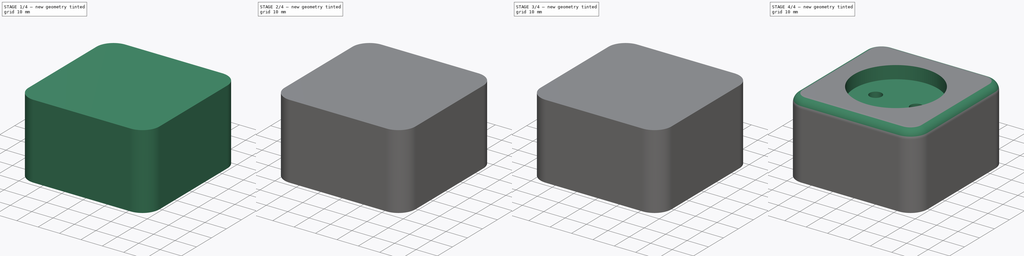
[diagram: build sequence overview — one tinted view per stage of 4, left to right]
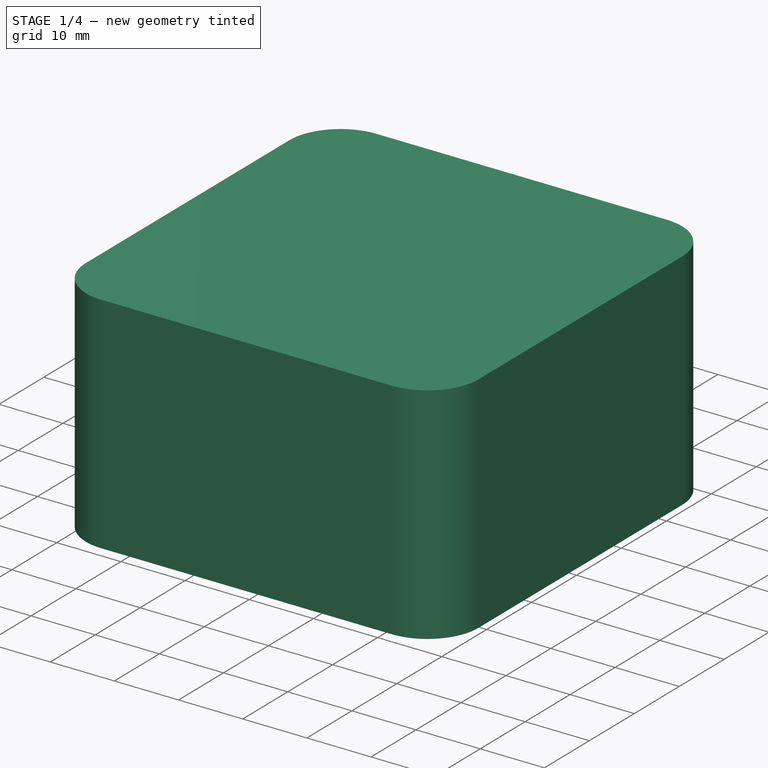
[diagram: stage 1 of 4 — iso view after this stage's code; geometry added in this stage tinted green]
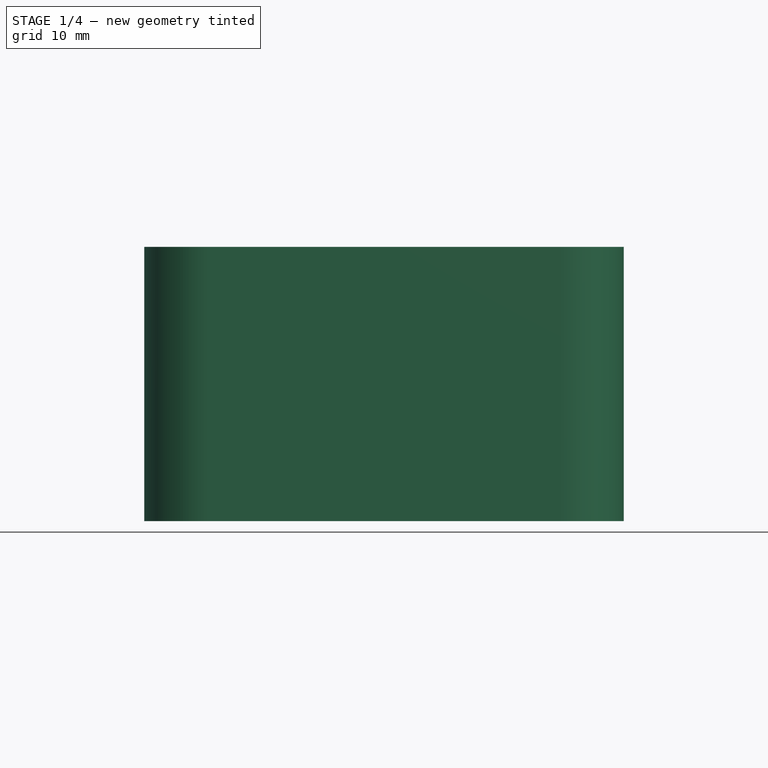
[diagram: stage 1 of 4 — front view after this stage's code; geometry added in this stage tinted green]
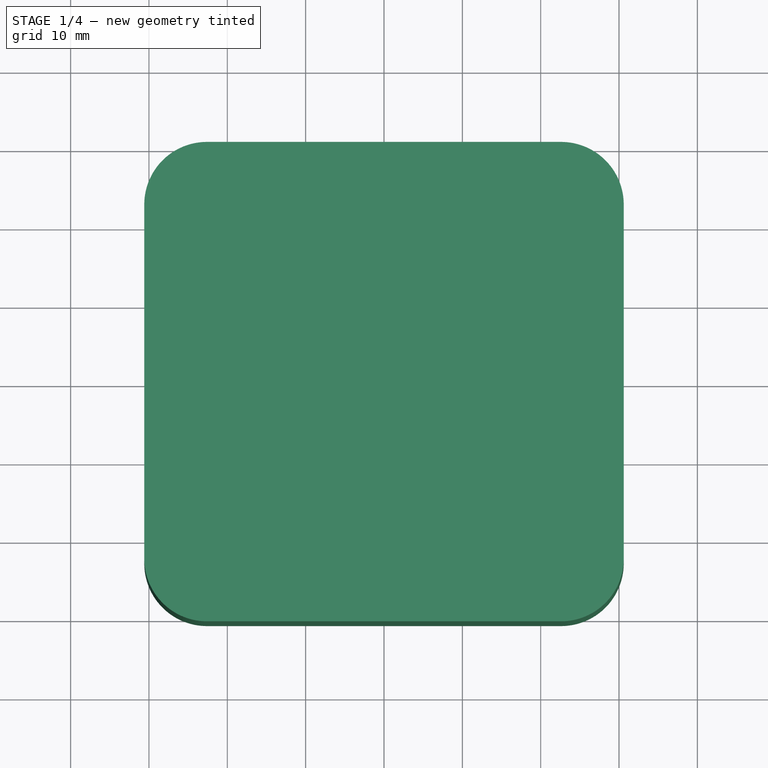
[diagram: stage 1 of 4 — top view after this stage's code; geometry added in this stage tinted green]
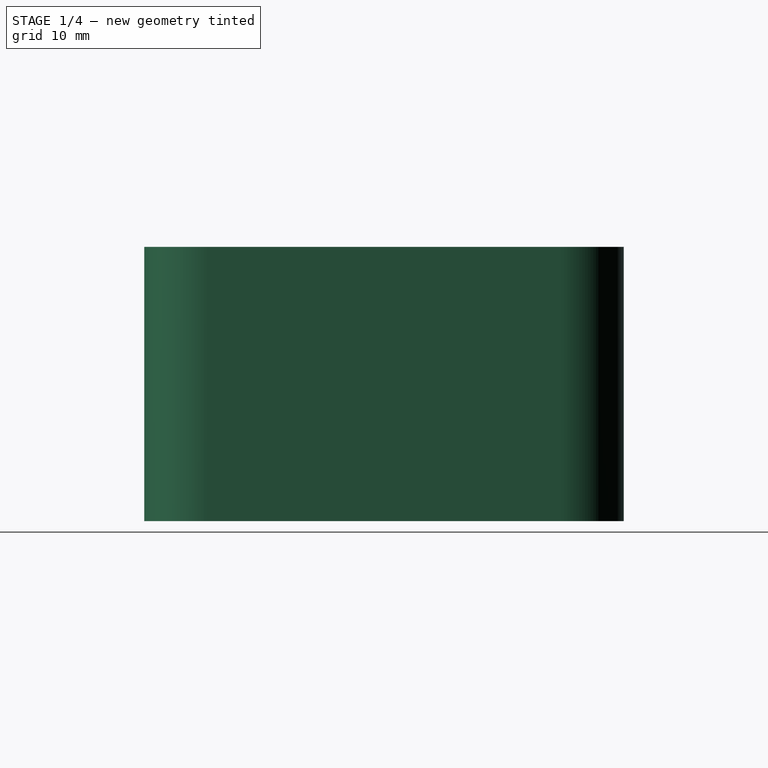
[diagram: stage 1 of 4 — right view after this stage's code; geometry added in this stage tinted green]
FCSTD DOCUMENT  (FreeCAD 0.19R24276 (Git))
Label: Wallsocket
License: All rights reserved
LicenseURL: http://en.wikipedia.org/wiki/All_rights_reserved
objects: Sketcher::SketchObject×10, PartDesign::Pad×5, PartDesign::Pocket×4, PartDesign::Mirrored×3, PartDesign::MultiTransform×1, PartDesign::Groove×1, PartDesign::Fillet×1, PartDesign::Body×1
note: 37 computed .brp shape members not serialized (recipe doc carries the construction recipe); baked Part::Feature solids carry a one-line shape summary decoded from their .brp

FEATURE [Sketcher::SketchObject] Sketch
  FullyConstrained = true
  MapMode = 5
  Support = -> [XY_Plane]
  sketch-geometry (12):
    g0: LineSegment StartX=-22.6 StartY=30.6 StartZ=0 EndX=22.6 EndY=30.6 EndZ=0
    g1: LineSegment StartX=30.6 StartY=22.6 StartZ=0 EndX=30.6 EndY=-22.6 EndZ=0
    g2: LineSegment StartX=22.6 StartY=-30.6 StartZ=0 EndX=-22.6 EndY=-30.6 EndZ=0
    g3: LineSegment StartX=-30.6 StartY=-22.6 StartZ=0 EndX=-30.6 EndY=22.6 EndZ=0
    g4: ArcOfCircle CenterX=-22.6 CenterY=22.6 CenterZ=0 NormalX=0 NormalY=0 NormalZ=1 AngleXU=0 Radius=8 StartAngle=1.5708 EndAngle=3.14159
    g5: ArcOfCircle CenterX=22.6 CenterY=22.6 CenterZ=0 NormalX=0 NormalY=0 NormalZ=1 AngleXU=0 Radius=8 StartAngle=2.39e-14 EndAngle=1.5708
    g6: ArcOfCircle CenterX=22.6 CenterY=-22.6 CenterZ=0 NormalX=0 NormalY=0 NormalZ=1 AngleXU=0 Radius=8 StartAngle=4.71239 EndAngle=6.28319
    g7: ArcOfCircle CenterX=-22.6 CenterY=-22.6 CenterZ=0 NormalX=0 NormalY=0 NormalZ=1 AngleXU=0 Radius=8 StartAngle=3.14159 EndAngle=4.71239
    g8: LineSegment StartX=-22.6 StartY=22.6 StartZ=0 EndX=22.6 EndY=22.6 EndZ=0
    g9: LineSegment StartX=22.6 StartY=22.6 StartZ=0 EndX=22.6 EndY=-22.6 EndZ=0
    g10: LineSegment StartX=22.6 StartY=-22.6 StartZ=0 EndX=-22.6 EndY=-22.6 EndZ=0
    g11: LineSegment StartX=-22.6 StartY=-22.6 StartZ=0 EndX=-22.6 EndY=22.6 EndZ=0
  constraints (26):
    c: Horizontal(g0)
    c: Horizontal(g2)
    c: Vertical(g1)
    c: Vertical(g3)
    c: Tangent(g3,g4) = 1.5708
    c: Tangent(g0,g4) = 1.5708
    c: Tangent(g0,g5) = 1.5708
    c: Tangent(g1,g5) = 1.5708
    c: Tangent(g1,g6) = 1.5708
    c: Tangent(g2,g6) = 1.5708
    c: Tangent(g2,g7) = 1.5708
    c: Tangent(g3,g7) = 1.5708
    c: Coincident(g8,g9)
    c: Coincident(g9,g10)
    c: Coincident(g10,g11)
    c: Coincident(g11,g8)
    c: Horizontal(g10)
    c: Coincident(g8,g4)
    c: Coincident(g9,g6)
    c: Coincident(g5,g8)
    c: Coincident(g7,g10)
    c: Symmetric(g5,g6,g-1)
    c: Symmetric(g5,g4,g-2)
    c: Equal(g9,g8)
    c: DistanceX(g3,g1) = 61.2
    c: Radius(g5) = 8
FEATURE [PartDesign::Pad] Pad
  Direction = (1,1,1)
  Length = 35
  Length2 = 100
  Profile = -> Sketch
  Type = 0
FEATURE [Sketcher::SketchObject] Sketch001
  ExternalGeometry = -> [Sketch]
  FullyConstrained = true
  MapMode = 5
  Support = -> [XY_Plane]
  sketch-geometry (12):
    g0: LineSegment StartX=22.6 StartY=22.6 StartZ=0 EndX=-22.6 EndY=22.6 EndZ=0
    g1: LineSegment StartX=-22.6 StartY=22.6 StartZ=0 EndX=-22.6 EndY=-22.6 EndZ=0
    g2: LineSegment StartX=-22.6 StartY=-22.6 StartZ=0 EndX=22.6 EndY=-22.6 EndZ=0
    g3: LineSegment StartX=22.6 StartY=-22.6 StartZ=0 EndX=22.6 EndY=22.6 EndZ=0
    g4: LineSegment StartX=-22.6 StartY=28.3 StartZ=0 EndX=22.6 EndY=28.3 EndZ=0
    g5: LineSegment StartX=28.3 StartY=22.6 StartZ=0 EndX=28.3 EndY=-22.6 EndZ=0
    g6: LineSegment StartX=22.6 StartY=-28.3 StartZ=0 EndX=-22.6 EndY=-28.3 EndZ=0
    g7: LineSegment StartX=-28.3 StartY=-22.6 StartZ=0 EndX=-28.3 EndY=22.6 EndZ=0
    g8: ArcOfCircle CenterX=22.6 CenterY=22.6 CenterZ=0 NormalX=0 NormalY=0 NormalZ=1 AngleXU=0 Radius=5.7 StartAngle=0 EndAngle=1.5708
    g9: ArcOfCircle CenterX=-22.6 CenterY=22.6 CenterZ=0 NormalX=0 NormalY=0 NormalZ=1 AngleXU=0 Radius=5.7 StartAngle=1.5708 EndAngle=3.14159
    g10: ArcOfCircle CenterX=-22.6 CenterY=-22.6 CenterZ=0 NormalX=0 NormalY=0 NormalZ=1 AngleXU=0 Radius=5.7 StartAngle=3.14159 EndAngle=4.71239
    g11: ArcOfCircle CenterX=22.6 CenterY=-22.6 CenterZ=0 NormalX=0 NormalY=0 NormalZ=1 AngleXU=0 Radius=5.7 StartAngle=4.71239 EndAngle=6.28319
  constraints (25):
    c: Coincident(g0,g1)
    c: Coincident(g1,g2)
    c: Coincident(g2,g3)
    c: Coincident(g3,g0)
    c: Horizontal(g2)
    c: Vertical(g1)
    c: Coincident(g0,g-3)
    c: Symmetric(g0,g2,g-1)
    c: Symmetric(g0,g0,g-2)
    c: Horizontal(g4)
    c: Horizontal(g6)
    c: Vertical(g5)
    c: Tangent(g5,g8) = 1.5708
    c: Tangent(g4,g8) = 1.5708
    c: Tangent(g4,g9) = 1.5708
    c: Tangent(g7,g9) = 1.5708
    c: Tangent(g7,g10) = 1.5708
    c: Tangent(g6,g10) = 1.5708
    c: Tangent(g6,g11) = 1.5708
    c: Tangent(g5,g11) = 1.5708
    c: Coincident(g0,g8)
    c: Coincident(g0,g9)
    c: Coincident(g1,g10)
    c: Coincident(g2,g11)
    c: DistanceX(g5,g-3) = 2.3
FEATURE [PartDesign::Pocket] Pocket
  BaseFeature = -> Pad
  Length = 25
  Length2 = 100
  Profile = -> Sketch001
  Reversed = true
  Type = 0
FEATURE [Sketcher::SketchObject] Sketch002
  FullyConstrained = true
  MapMode = 5
  Support = -> [XY_Plane]
  sketch-geometry (4):
    g0: LineSegment StartX=19.5 StartY=28.6 StartZ=0 EndX=13.1 EndY=28.6 EndZ=0
    g1: LineSegment StartX=13.1 StartY=28.6 StartZ=0 EndX=13.1 EndY=26.1 EndZ=0
    g2: LineSegment StartX=13.1 StartY=26.1 StartZ=0 EndX=19.5 EndY=26.1 EndZ=0
    g3: LineSegment StartX=19.5 StartY=26.1 StartZ=0 EndX=19.5 EndY=28.6 EndZ=0
  constraints (12):
    c: Coincident(g0,g1)
    c: Coincident(g1,g2)
    c: Coincident(g2,g3)
    c: Coincident(g3,g0)
    c: Horizontal(g0)
    c: Horizontal(g2)
    c: Vertical(g1)
    c: Vertical(g3)
    c: DistanceX(g2) = 19.5
    c: DistanceX(g2,g2) = 6.4
    c: DistanceY(g2) = 26.1
    c: DistanceY(g3,g3) = 2.5
FEATURE [PartDesign::Pad] Pad001
  BaseFeature = -> Pocket
  Direction = (1,1,1)
  Length = 9
  Length2 = 100
  Profile = -> Sketch002
  Type = 0
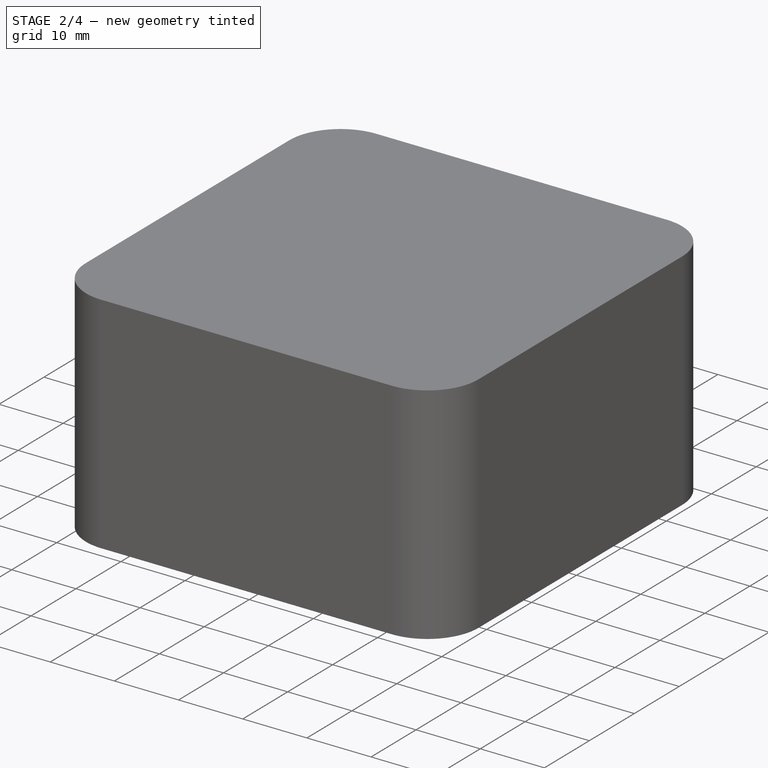
[diagram: stage 2 of 4 — iso view after this stage's code; geometry added in this stage tinted green]
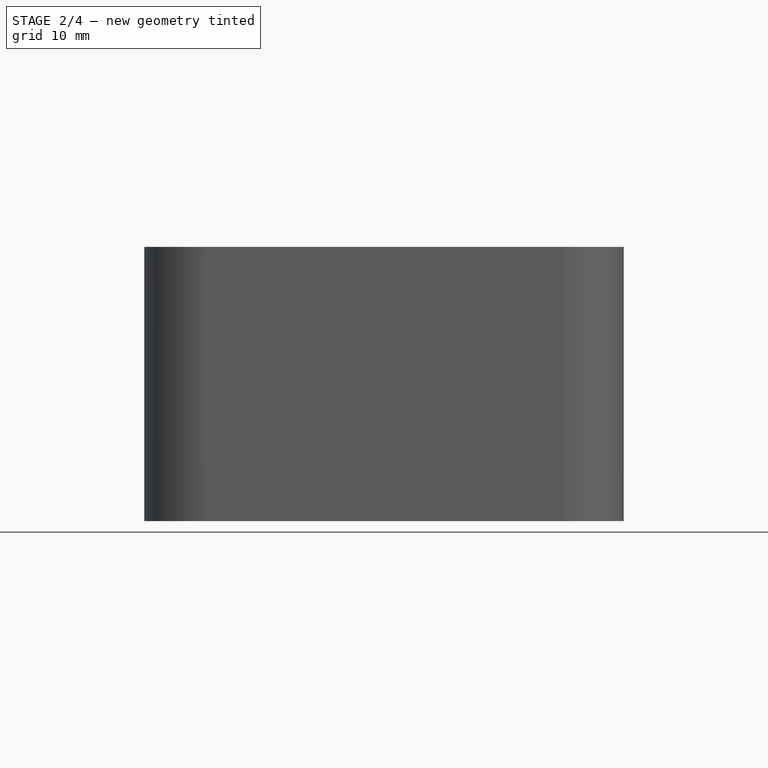
[diagram: stage 2 of 4 — front view after this stage's code; geometry added in this stage tinted green]
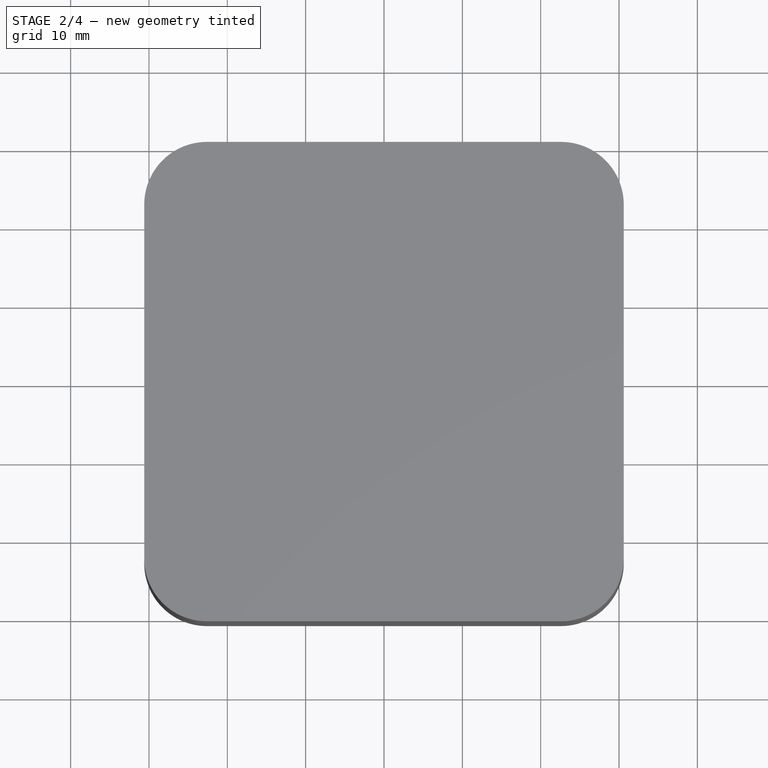
[diagram: stage 2 of 4 — top view after this stage's code; geometry added in this stage tinted green]
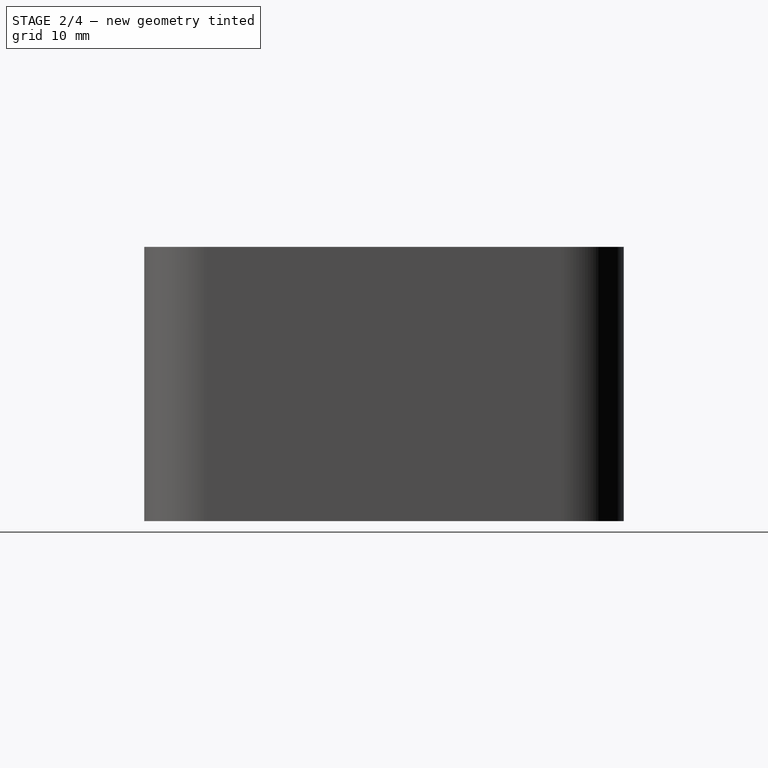
[diagram: stage 2 of 4 — right view after this stage's code; geometry added in this stage tinted green]
FEATURE [Sketcher::SketchObject] Sketch003
  FullyConstrained = true
  MapMode = 5
  Support = -> [XY_Plane]
  sketch-geometry (2):
    g0: Circle CenterX=28.1 CenterY=15.6 CenterZ=0 NormalX=0 NormalY=0 NormalZ=1 AngleXU=0 Radius=1.55
    g1: LineSegment StartX=28.1 StartY=15.6 StartZ=0 EndX=26.55 EndY=15.6 EndZ=0
  constraints (6):
    c: Radius(g0) = 1.55
    c: Coincident(g1,g0)
    c: PointOnObject(g1,g0)
    c: Horizontal(g1)
    c: DistanceX(g1) = 26.55
    c: DistanceY(g0) = 15.6
FEATURE [PartDesign::Pad] Pad002
  BaseFeature = -> Pad001
  Direction = (1,1,1)
  Length = 9
  Length2 = 100
  Profile = -> Sketch003
  Type = 0
FEATURE [Sketcher::SketchObject] Sketch004
  FullyConstrained = true
  MapMode = 5
  Support = -> [XY_Plane]
  sketch-geometry (6):
    g0: LineSegment StartX=21.8 StartY=3.3 StartZ=0 EndX=12.7 EndY=3.3 EndZ=0
    g1: LineSegment StartX=12.7 StartY=3.3 StartZ=0 EndX=12.7 EndY=5.5 EndZ=0
    g2: LineSegment StartX=14.7 StartY=7.5 StartZ=0 EndX=19.8 EndY=7.5 EndZ=0
    g3: LineSegment StartX=21.8 StartY=5.5 StartZ=0 EndX=21.8 EndY=3.3 EndZ=0
    g4: ArcOfCircle CenterX=19.8 CenterY=5.5 CenterZ=0 NormalX=0 NormalY=0 NormalZ=1 AngleXU=0 Radius=2 StartAngle=6.77e-14 EndAngle=1.5708
    g5: ArcOfCircle CenterX=14.7 CenterY=5.5 CenterZ=0 NormalX=0 NormalY=0 NormalZ=1 AngleXU=0 Radius=2 StartAngle=1.5708 EndAngle=3.14159
  constraints (16):
    c: Coincident(g0,g1)
    c: Coincident(g3,g0)
    c: Horizontal(g0)
    c: Horizontal(g2)
    c: Vertical(g1)
    c: Vertical(g3)
    c: Tangent(g3,g4) = 1.5708
    c: Tangent(g2,g4) = 1.5708
    c: Tangent(g2,g5) = 1.5708
    c: Tangent(g1,g5) = 1.5708
    c: DistanceX(g0,g0) = 9.1
    c: DistanceY(g0,g2) = 4.2
    c: DistanceY(g0) = 3.3
    c: DistanceX(g3) = 21.8
    c: Equal(g5,g4)
    c: Radius(g4) = 2
FEATURE [PartDesign::Pad] Pad003
  BaseFeature = -> Pad002
  Direction = (1,1,1)
  Length = 33
  Length2 = 100
  Profile = -> Sketch004
  Type = 0
FEATURE [PartDesign::Mirrored] Mirrored
  MirrorPlane = -> YZ_Plane
FEATURE [PartDesign::Mirrored] Mirrored001
  MirrorPlane = -> XZ_Plane
FEATURE [PartDesign::MultiTransform] MultiTransform
  BaseFeature = -> Pad003
  Originals = -> [Pad001,Pad003,Pad002]
  Transformations = -> [Mirrored,Mirrored001]
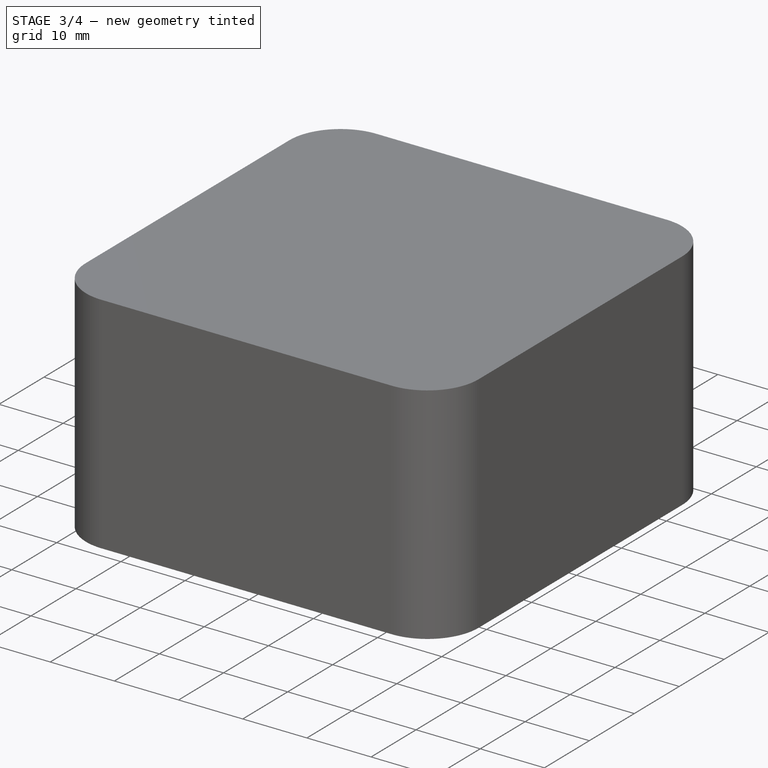
[diagram: stage 3 of 4 — iso view after this stage's code; geometry added in this stage tinted green]
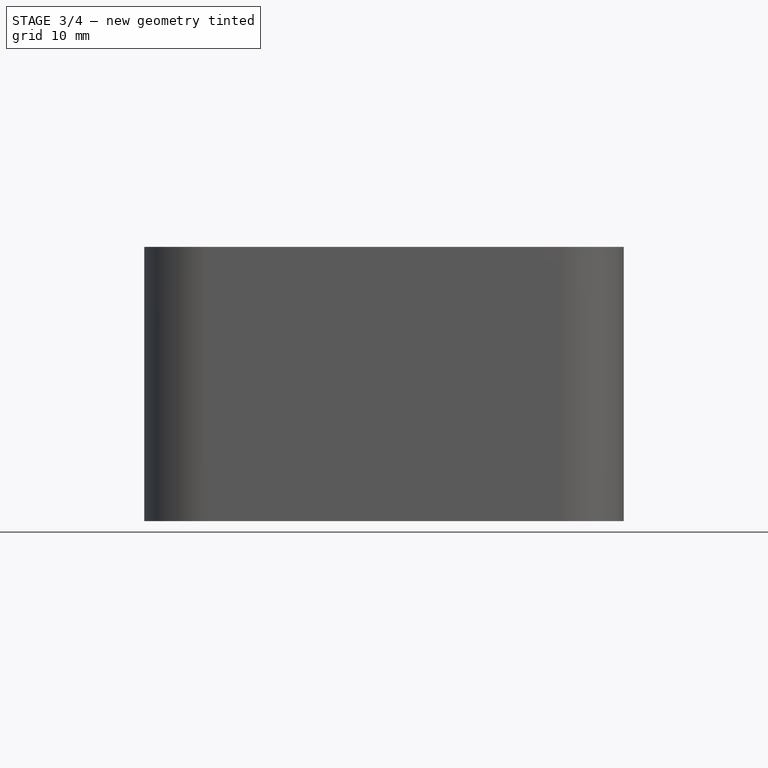
[diagram: stage 3 of 4 — front view after this stage's code; geometry added in this stage tinted green]
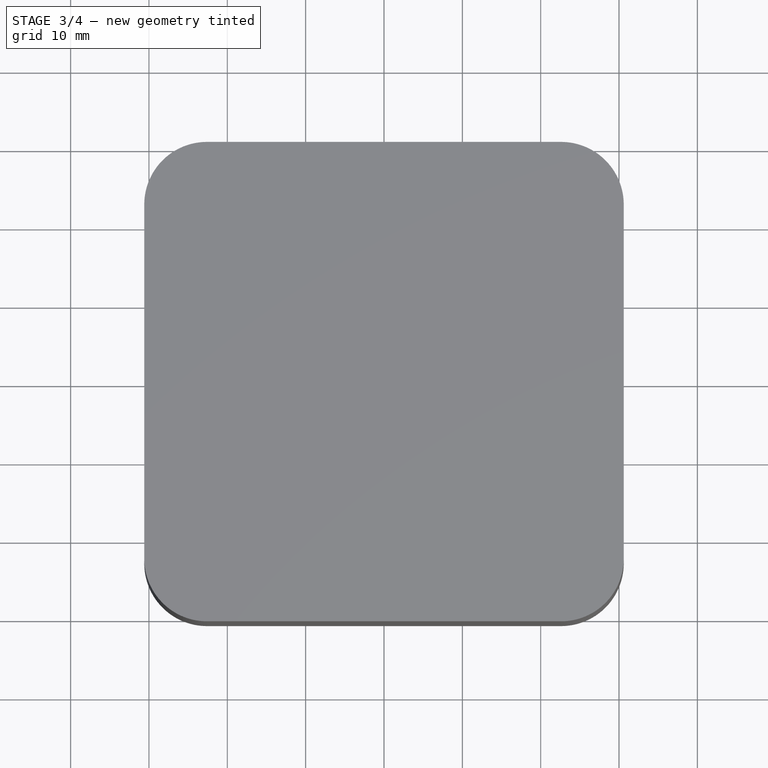
[diagram: stage 3 of 4 — top view after this stage's code; geometry added in this stage tinted green]
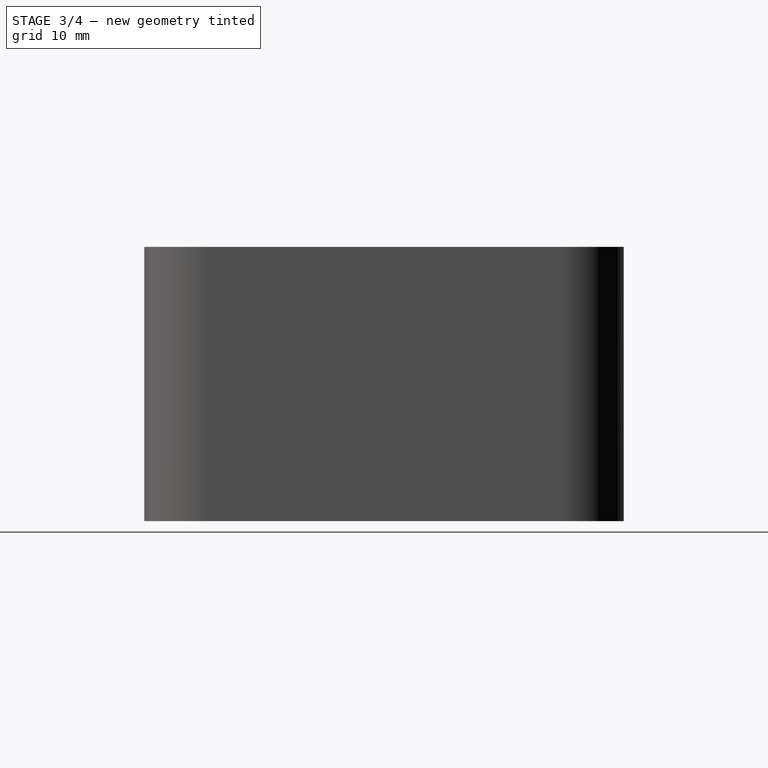
[diagram: stage 3 of 4 — right view after this stage's code; geometry added in this stage tinted green]
FEATURE [Sketcher::SketchObject] Sketch005
  FullyConstrained = true
  MapMode = 5
  Placement = pos=(0,0,0) rot=(1,0,0;1.5708rad)
  Support = -> [XZ_Plane]
  sketch-geometry (4):
    g0: LineSegment StartX=-12.75 StartY=1 StartZ=0 EndX=12.75 EndY=1 EndZ=0
    g1: LineSegment StartX=12.75 StartY=1 StartZ=0 EndX=17.5 EndY=0 EndZ=0
    g2: LineSegment StartX=17.5 StartY=0 StartZ=0 EndX=-17.5 EndY=0 EndZ=0
    g3: LineSegment StartX=-17.5 StartY=0 StartZ=0 EndX=-12.75 EndY=1 EndZ=0
  constraints (10):
    c: Coincident(g0,g1)
    c: Coincident(g1,g2)
    c: Coincident(g2,g3)
    c: Coincident(g3,g0)
    c: PointOnObject(g1,g-1)
    c: Symmetric(g0,g0,g-2)
    c: Symmetric(g1,g2,g-2)
    c: DistanceX(g2,g2) = 35
    c: DistanceX(g0,g0) = 25.5
    c: DistanceY(g1,g1) = 1
FEATURE [PartDesign::Pocket] Pocket001
  BaseFeature = -> MultiTransform
  Length = 20
  Length2 = 100
  Midplane = true
  Profile = -> Sketch005
  Type = 0
FEATURE [Sketcher::SketchObject] Sketch006
  AttachmentOffset = pos=(0,0,2) rot=(0,0,1;0rad)
  FullyConstrained = true
  MapMode = 5
  Placement = pos=(0,0,2) rot=(0,0,1;0rad)
  Support = -> [XY_Plane]
  sketch-geometry (9):
    g0: LineSegment StartX=23.95 StartY=5 StartZ=0 EndX=12.95 EndY=5 EndZ=0
    g1: LineSegment StartX=12.95 StartY=5 StartZ=0 EndX=12.95 EndY=-5 EndZ=0
    g2: LineSegment StartX=12.95 StartY=-5 StartZ=0 EndX=23.95 EndY=-5 EndZ=0
    g3: LineSegment StartX=23.95 StartY=-5 StartZ=0 EndX=23.95 EndY=-2.25 EndZ=0
    g4: ArcOfCircle CenterX=19 CenterY=0 CenterZ=0 NormalX=0 NormalY=0 NormalZ=1 AngleXU=0 Radius=2.25 StartAngle=1.5708 EndAngle=4.71239
    g5: LineSegment StartX=19 StartY=-2.25 StartZ=0 EndX=23.95 EndY=-2.25 EndZ=0
    g6: LineSegment StartX=19 StartY=2.25 StartZ=0 EndX=23.95 EndY=2.25 EndZ=0
    g7: LineSegment StartX=23.95 StartY=2.25 StartZ=0 EndX=23.95 EndY=5 EndZ=0
    g8: GeomPoint X=16.75 Y=0 Z=0
  constraints (23):
    c: Coincident(g0,g1)
    c: Coincident(g1,g2)
    c: Coincident(g2,g3)
    c: Coincident(g7,g0)
    c: Horizontal(g0)
    c: Horizontal(g2)
    c: Vertical(g1)
    c: Symmetric(g2,g0,g-1)
    c: Tangent(g4,g6) = 1.5708
    c: Tangent(g4,g5) = -1.5708
    c: Horizontal(g5)
    c: PointOnObject(g4,g-1)
    c: Coincident(g7,g6)
    c: Tangent(g3,g7)
    c: Coincident(g5,g3)
    c: Radius(g4) = 2.25
    c: Horizontal(g6)
    c: PointOnObject(g8,g4)
    c: PointOnObject(g8,g-1)
    c: DistanceX(g4) = 19
    c: DistanceX(g0) = 23.95
    c: DistanceY(g2,g0) = 10
    c: DistanceX(g0,g0) = 11
FEATURE [PartDesign::Pad] Pad004
  BaseFeature = -> Pocket001
  Direction = (1,1,1)
  Length = 7
  Length2 = 100
  Profile = -> Sketch006
  Type = 0
FEATURE [Sketcher::SketchObject] Sketch007
  AttachmentOffset = pos=(0,0,9) rot=(0,0,1;0rad)
  FullyConstrained = true
  MapMode = 5
  Placement = pos=(0,0,9) rot=(0,0,1;0rad)
  Support = -> [XY_Plane]
  sketch-geometry (4):
    g0: ArcOfCircle CenterX=19 CenterY=0 CenterZ=0 NormalX=0 NormalY=0 NormalZ=1 AngleXU=0 Radius=5 StartAngle=1.5708 EndAngle=4.71239
    g1: LineSegment StartX=19 StartY=-5 StartZ=0 EndX=25 EndY=-5 EndZ=0
    g2: LineSegment StartX=19 StartY=5 StartZ=0 EndX=25 EndY=5 EndZ=0
    g3: LineSegment StartX=25 StartY=5 StartZ=0 EndX=25 EndY=-5 EndZ=0
  constraints (11):
    c: Tangent(g0,g2) = 1.5708
    c: Tangent(g0,g1) = -1.5708
    c: Coincident(g1,g3) = -1.5708
    c: Coincident(g2,g3) = 1.5708
    c: Horizontal(g1)
    c: PointOnObject(g0,g-1)
    c: Vertical(g3)
    c: DistanceX(g0) = 19
    c: Radius(g0) = 5
    c: Horizontal(g2)
    c: DistanceX(g2) = 25
FEATURE [PartDesign::Pocket] Pocket002
  BaseFeature = -> Pad004
  Length = 10
  Length2 = 100
  Profile = -> Sketch007
  Reversed = true
  Type = 0
FEATURE [PartDesign::Mirrored] Mirrored002
  BaseFeature = -> Pocket002
  MirrorPlane = -> YZ_Plane
  Originals = -> [Pad004,Pocket002]
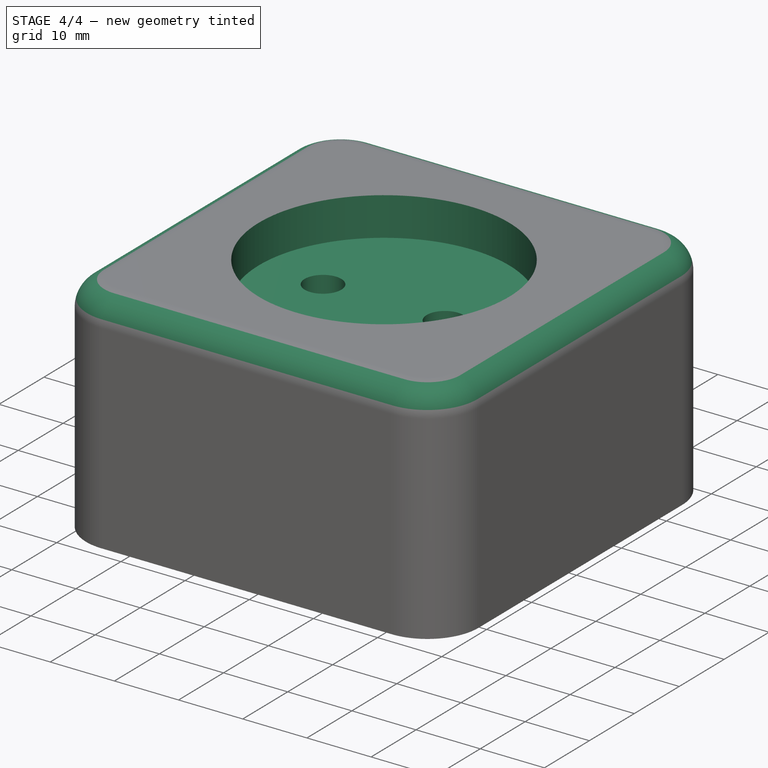
[diagram: stage 4 of 4 — iso view after this stage's code; geometry added in this stage tinted green]
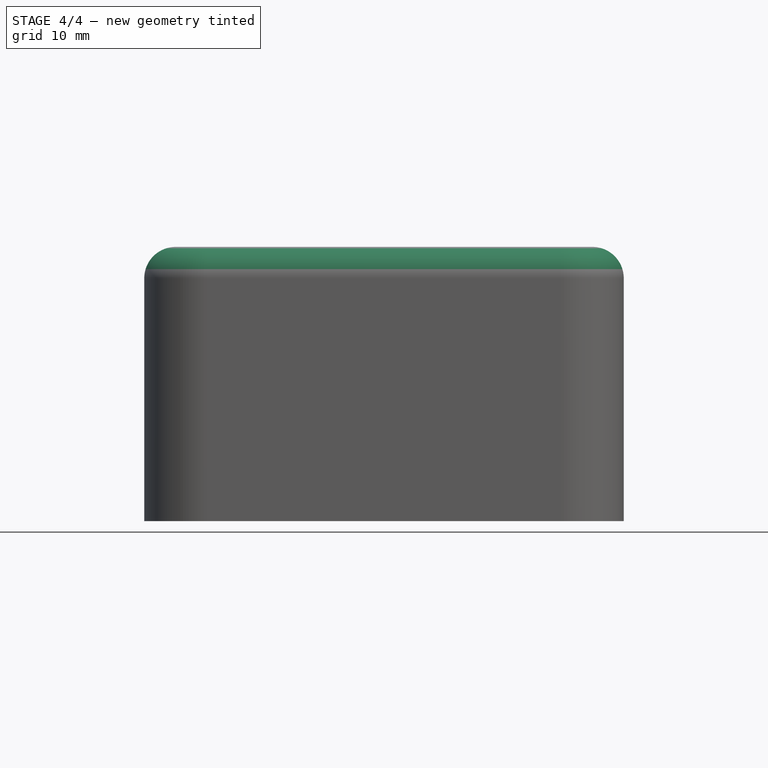
[diagram: stage 4 of 4 — front view after this stage's code; geometry added in this stage tinted green]
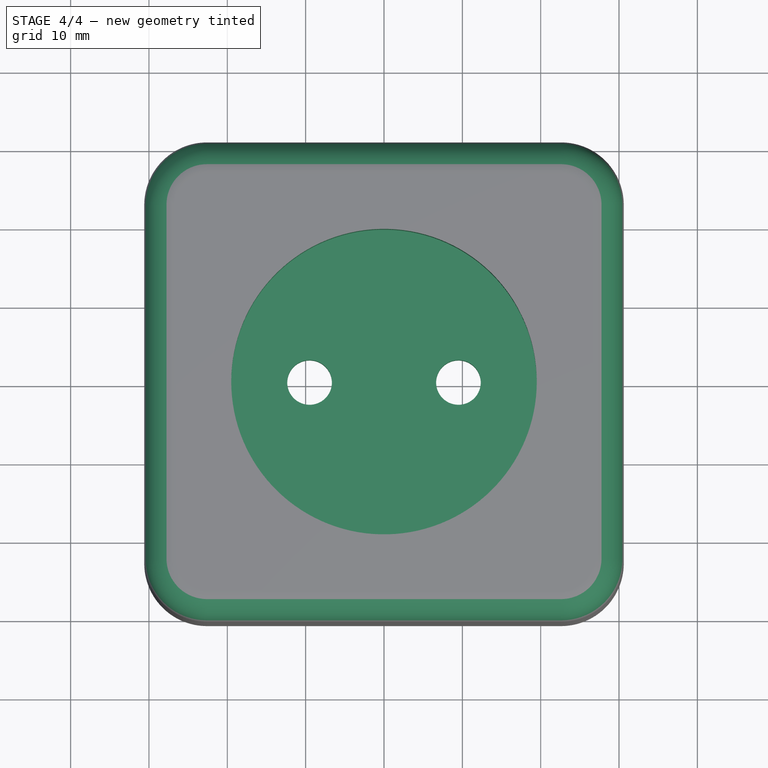
[diagram: stage 4 of 4 — top view after this stage's code; geometry added in this stage tinted green]
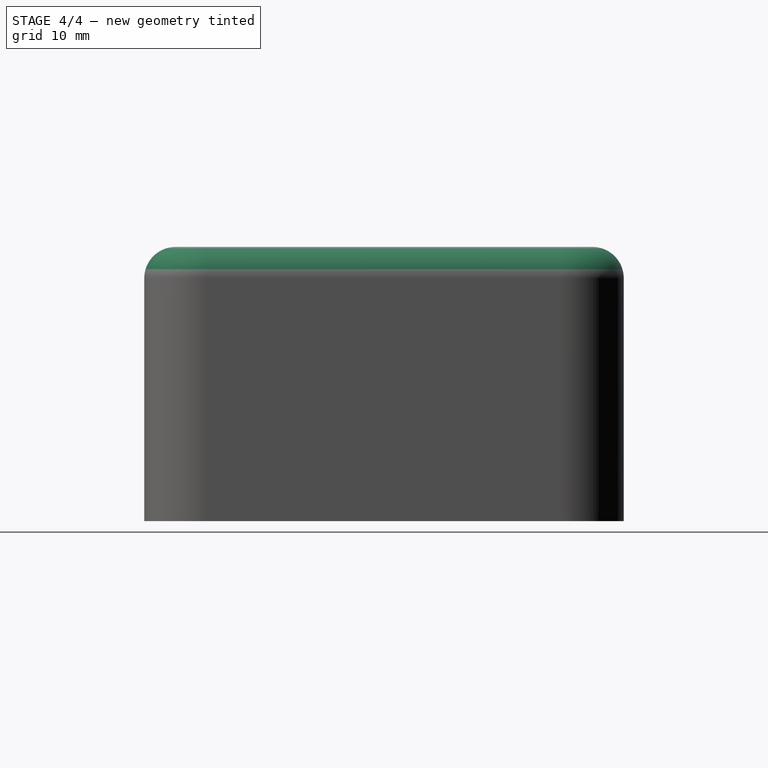
[diagram: stage 4 of 4 — right view after this stage's code; geometry added in this stage tinted green]
FEATURE [Sketcher::SketchObject] Sketch008
  FullyConstrained = true
  MapMode = 5
  Placement = pos=(0,0,0) rot=(1,0,0;1.5708rad)
  Support = -> [XZ_Plane]
  sketch-geometry (4):
    g0: LineSegment StartX=0 StartY=35 StartZ=0 EndX=0 EndY=29 EndZ=0
    g1: LineSegment StartX=0 StartY=29 StartZ=0 EndX=19.5 EndY=29 EndZ=0
    g2: LineSegment StartX=19.5 StartY=29 StartZ=0 EndX=19.5 EndY=35 EndZ=0
    g3: LineSegment StartX=0 StartY=35 StartZ=0 EndX=19.5 EndY=35 EndZ=0
  constraints (12):
    c: Coincident(g0,g1)
    c: Coincident(g1,g2)
    c: Horizontal(g1)
    c: Vertical(g0)
    c: Vertical(g2)
    c: PointOnObject(g0,g-2)
    c: DistanceX(g2) = 19.5
    c: DistanceY(g2) = 35
    c: DistanceY(g2,g2) = 6
    c: Coincident(g3,g0)
    c: Coincident(g3,g2)
    c: Horizontal(g3)
FEATURE [PartDesign::Groove] Groove
  Angle = 360
  Axis = (-3e-16,3e-16,1)
  Base = (0,0,0)
  BaseFeature = -> Mirrored002
  Profile = -> Sketch008
  ReferenceAxis = -> Z_Axis
FEATURE [Sketcher::SketchObject] Sketch009
  FullyConstrained = true
  MapMode = 5
  Support = -> [XY_Plane]
  sketch-geometry (2):
    g0: Circle CenterX=9.5 CenterY=0 CenterZ=0 NormalX=0 NormalY=0 NormalZ=1 AngleXU=0 Radius=2.85
    g1: Circle CenterX=-9.5 CenterY=0 CenterZ=0 NormalX=0 NormalY=0 NormalZ=1 AngleXU=0 Radius=2.85
  constraints (5):
    c: PointOnObject(g0,g-1)
    c: Symmetric(g0,g1,g-2)
    c: DistanceX(g1,g0) = 19
    c: Equal(g1,g0)
    c: Radius(g0) = 2.85
FEATURE [PartDesign::Pocket] Pocket003
  BaseFeature = -> Groove
  Length = 5
  Length2 = 100
  Midplane = true
  Profile = -> Sketch009
  Type = 1
FEATURE [PartDesign::Fillet] Fillet
  Base = -> Pocket003 [Edge52]
  BaseFeature = -> Pocket003
  Radius = 4
  SupportTransform = false
FEATURE [PartDesign::Body] Body  label="Wallsocket"
  Group = -> [Sketch,Pad,Sketch001,Pocket,Sketch002,Pad001,Sketch003,Pad002,Sketch004,Pad003,MultiTransform,Mirrored,Mirrored001,Sketch005,Pocket001,Sketch006,Pad004,Sketch007,Pocket002,Mirrored002,Sketch008,Groove,Sketch009,Pocket003,Fillet]
  Origin = -> Origin
  Tip = -> Fillet
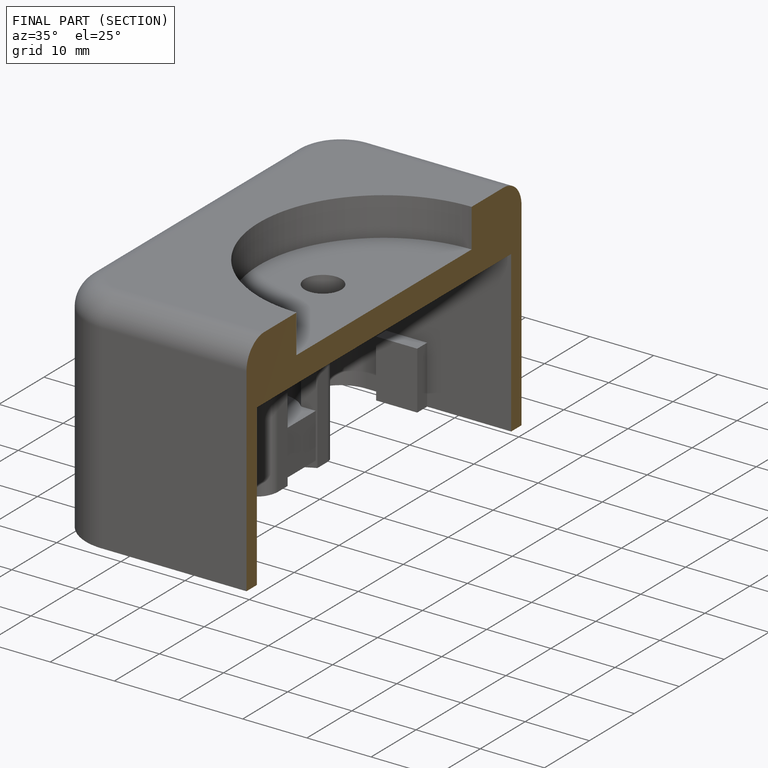
[diagram: finished part — half-section view (interior)]
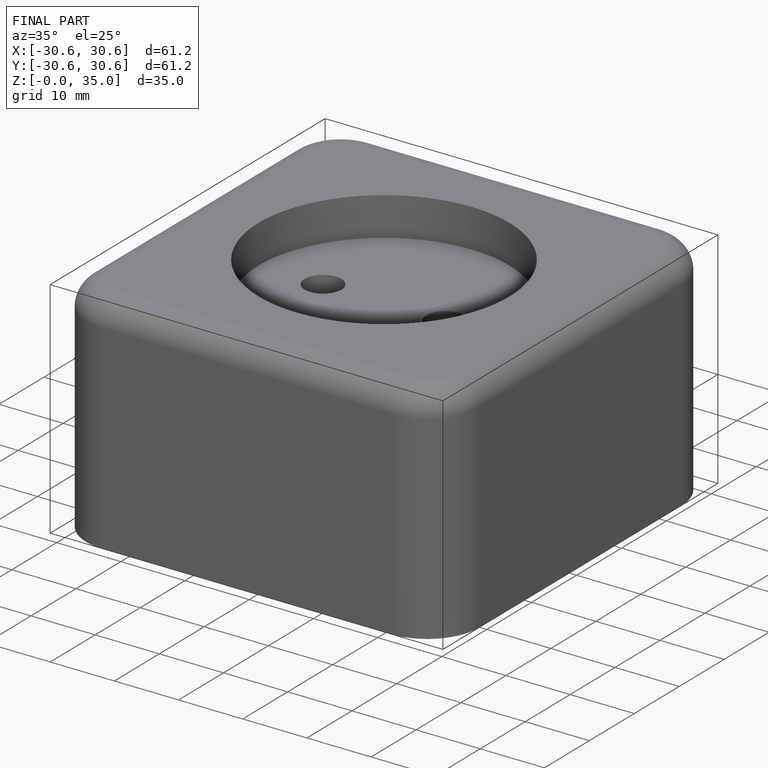
[diagram: finished part — iso view with bounding-box wireframe]
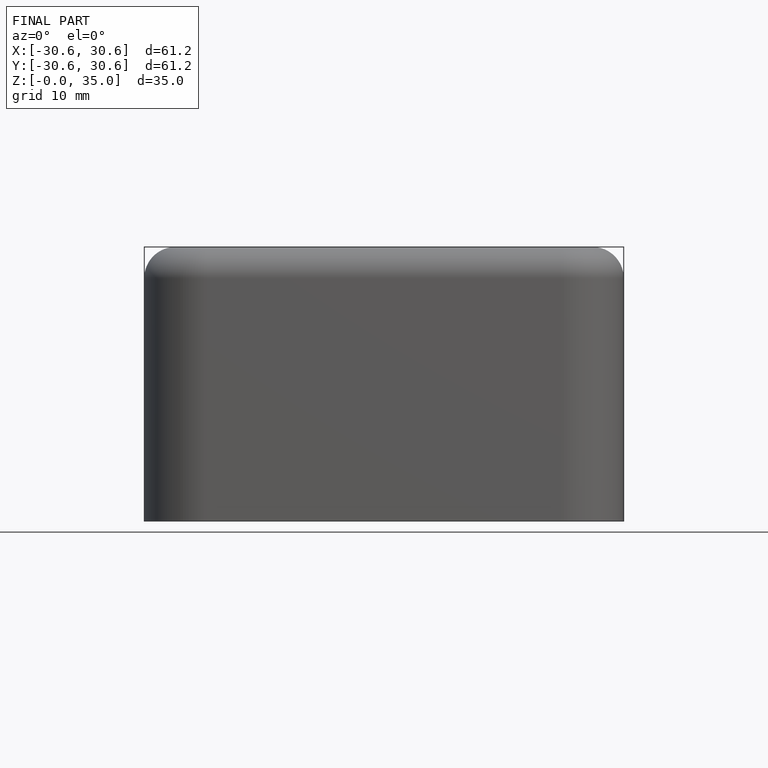
[diagram: finished part — front view with bounding-box wireframe]
